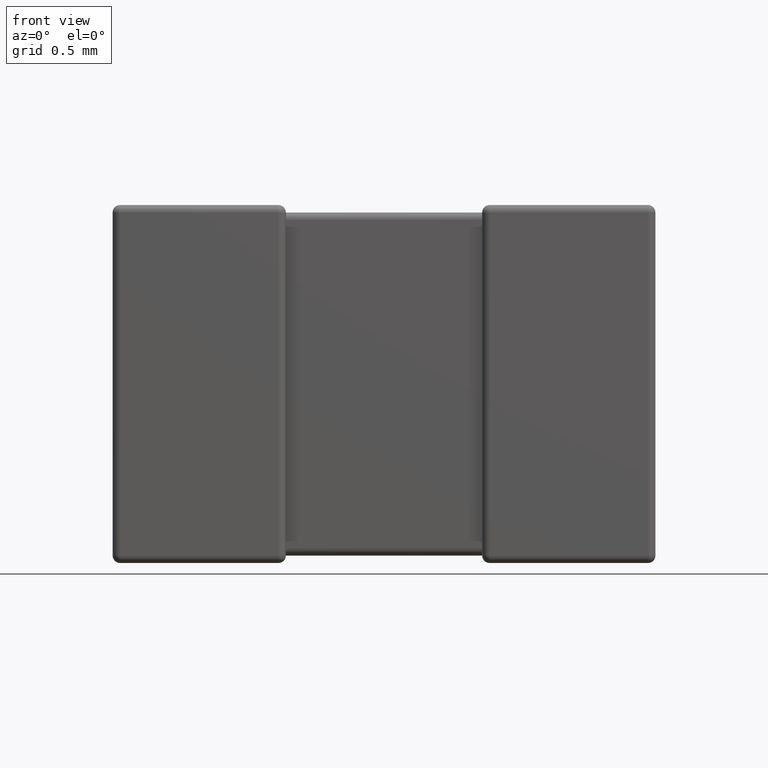
[diagram: clean part render]
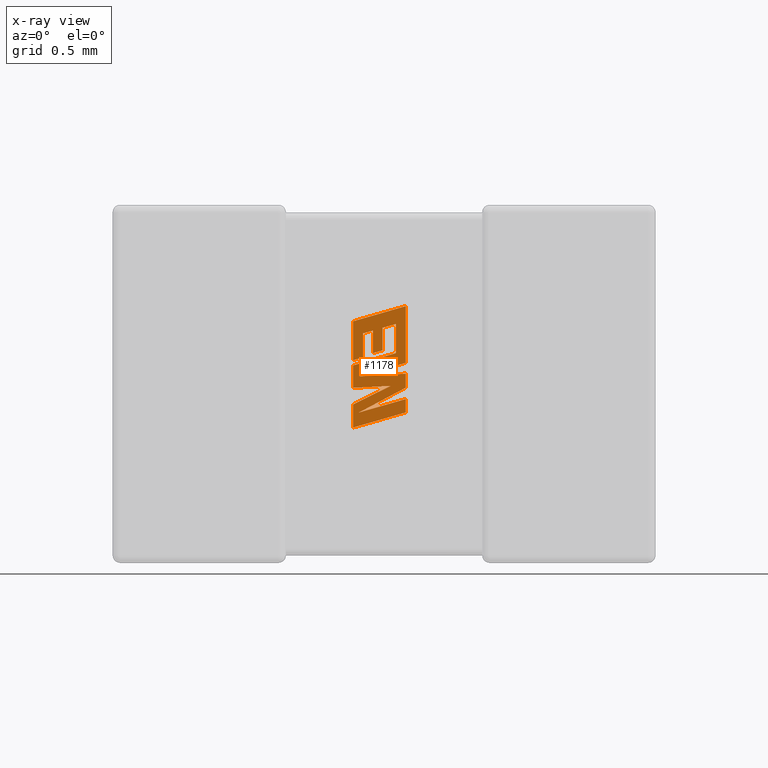
[diagram: x-ray — body ghosted, one internal face saturated and labeled with its STEP entity id]
A machine part, front view, then the same camera in x-ray: the body is ghosted and one INTERNAL B-rep face — a face not visible from any outside direction — is saturated and labeled: STEP entity #1178.
In plain terms, the highlighted planar face has unit normal (0, -1, 0).
Its self-contained STEP definition (entity closure, byte-faithful):
#70 = CARTESIAN_POINT ( 'NONE',  ( 1.066135960447848641, 1.417759999999999909, -0.7421563696426072276 ) ) ;
#73 = DIRECTION ( 'NONE',  ( 0.000000000000000000, 0.000000000000000000, -1.000000000000000000 ) ) ;
#80 = CARTESIAN_POINT ( 'NONE',  ( 1.066135960447848641, 1.417759999999999909, -0.7421563696426072276 ) ) ;
#81 = CARTESIAN_POINT ( 'NONE',  ( 1.169014311898064706, 1.417759999999999909, -0.5318483123047624828 ) ) ;
#102 = CARTESIAN_POINT ( 'NONE',  ( 1.126889512155282880, 1.417759999999999909, -0.6416697486451697907 ) ) ;
#158 = EDGE_CURVE ( 'NONE', #3493, #799, #3998, .T. ) ;
#179 = CARTESIAN_POINT ( 'NONE',  ( 1.269000000000003681, 1.417759999999999909, -0.7915325740813675681 ) ) ;
#197 = ORIENTED_EDGE ( 'NONE', *, *, #4203, .F. ) ;
#214 = VECTOR ( 'NONE', #3396, 1000.000000000000114 ) ;
#216 = ORIENTED_EDGE ( 'NONE', *, *, #584, .F. ) ;
#217 = VERTEX_POINT ( 'NONE', #1739 ) ;
#227 = CARTESIAN_POINT ( 'NONE',  ( 1.041132956314514857, 1.417759999999999909, -0.8640816736198583259 ) ) ;
#282 = LINE ( 'NONE', #327, #4197 ) ;
#299 = CARTESIAN_POINT ( 'NONE',  ( 1.126889512155282880, 1.417759999999999909, -0.6416697486451697907 ) ) ;
#305 = ORIENTED_EDGE ( 'NONE', *, *, #1965, .F. ) ;
#327 = CARTESIAN_POINT ( 'NONE',  ( 1.269000000000003681, 1.417759999999999909, -0.6839081761791220293 ) ) ;
#333 = LINE ( 'NONE', #3987, #1693 ) ;
#379 = ORIENTED_EDGE ( 'NONE', *, *, #765, .F. ) ;
#396 = EDGE_CURVE ( 'NONE', #2285, #4558, #4641, .T. ) ;
#411 = ORIENTED_EDGE ( 'NONE', *, *, #434, .F. ) ;
#420 = VERTEX_POINT ( 'NONE', #227 ) ;
#433 = CARTESIAN_POINT ( 'NONE',  ( 1.041132956314514857, 1.417759999999999909, -0.9640226091935145680 ) ) ;
#434 = EDGE_CURVE ( 'NONE', #2958, #3549, #3775, .T. ) ;
#450 = CARTESIAN_POINT ( 'NONE',  ( 1.269000000000003681, 1.417759999999999909, -0.6433485324851828668 ) ) ;
#479 = VERTEX_POINT ( 'NONE', #4665 ) ;
#480 = VECTOR ( 'NONE', #1708, 1000.000000000000114 ) ;
#495 = LINE ( 'NONE', #585, #2549 ) ;
#502 = DIRECTION ( 'NONE',  ( 0.9611542233438712390, 0.000000000000000000, 0.2760118818968482213 ) ) ;
#523 = EDGE_CURVE ( 'NONE', #217, #3397, #333, .T. ) ;
#538 = LINE ( 'NONE', #1970, #1705 ) ;
#545 = ORIENTED_EDGE ( 'NONE', *, *, #396, .F. ) ;
#584 = EDGE_CURVE ( 'NONE', #2436, #3440, #3622, .T. ) ;
#585 = CARTESIAN_POINT ( 'NONE',  ( 1.041132956314514857, 1.417759999999999909, -0.7921057084777192170 ) ) ;
#611 = DIRECTION ( 'NONE',  ( 0.000000000000000000, 0.000000000000000000, 1.000000000000000000 ) ) ;
#755 = PLANE ( 'NONE',  #1980 ) ;
#765 = EDGE_CURVE ( 'NONE', #1335, #3493, #2112, .T. ) ;
#781 = VERTEX_POINT ( 'NONE', #2162 ) ;
#799 = VERTEX_POINT ( 'NONE', #1111 ) ;
#840 = EDGE_CURVE ( 'NONE', #2706, #4400, #1854, .T. ) ;
#848 = DIRECTION ( 'NONE',  ( 0.000000000000000000, 0.000000000000000000, -1.000000000000000000 ) ) ;
#896 = DIRECTION ( 'NONE',  ( 0.000000000000000000, 0.000000000000000000, -1.000000000000000000 ) ) ;
#909 = ORIENTED_EDGE ( 'NONE', *, *, #523, .F. ) ;
#915 = CARTESIAN_POINT ( 'NONE',  ( 1.084506278058296802, 1.417759999999999909, -0.5561993412986168117 ) ) ;
#921 = ORIENTED_EDGE ( 'NONE', *, *, #2965, .F. ) ;
#923 = LINE ( 'NONE', #3839, #480 ) ;
#942 = CARTESIAN_POINT ( 'NONE',  ( 1.269000000000003681, 1.417759999999999909, -0.7915325740813675681 ) ) ;
#963 = EDGE_CURVE ( 'NONE', #3397, #1335, #1721, .T. ) ;
#987 = CARTESIAN_POINT ( 'NONE',  ( 1.041132956314514857, 1.417759999999999909, -0.9640226091935145680 ) ) ;
#993 = EDGE_CURVE ( 'NONE', #1395, #420, #1293, .T. ) ;
#1085 = VECTOR ( 'NONE', #1794, 1000.000000000000114 ) ;
#1111 = CARTESIAN_POINT ( 'NONE',  ( 1.126889512155282880, 1.417759999999999909, -0.5438665490579562833 ) ) ;
#1112 = DIRECTION ( 'NONE',  ( 0.000000000000000000, 0.000000000000000000, -1.000000000000000000 ) ) ;
#1128 = CARTESIAN_POINT ( 'NONE',  ( 1.203924100055729252, 1.417759999999999909, -0.7833425935635931481 ) ) ;
#1157 = VECTOR ( 'NONE', #4256, 1000.000000000000000 ) ;
#1169 = VECTOR ( 'NONE', #2097, 1000.000000000000227 ) ;
#1178 = ADVANCED_FACE ( 'NONE', ( #4346 ), #755, .T. ) ;
#1199 = CARTESIAN_POINT ( 'NONE',  ( 1.269000000000003681, 1.417759999999999909, -0.8985091539642460212 ) ) ;
#1213 = ORIENTED_EDGE ( 'NONE', *, *, #993, .F. ) ;
#1219 = LINE ( 'NONE', #3035, #2717 ) ;
#1253 = VERTEX_POINT ( 'NONE', #2304 ) ;
#1261 = LINE ( 'NONE', #1610, #214 ) ;
#1293 = LINE ( 'NONE', #987, #1157 ) ;
#1335 = VERTEX_POINT ( 'NONE', #4043 ) ;
#1395 = VERTEX_POINT ( 'NONE', #433 ) ;
#1410 = CARTESIAN_POINT ( 'NONE',  ( 1.169014311898064706, 1.417759999999999909, -0.6296376548220525837 ) ) ;
#1416 = CARTESIAN_POINT ( 'NONE',  ( 1.269000000000003681, 1.417759999999999909, -0.7307852580555117550 ) ) ;
#1451 = ORIENTED_EDGE ( 'NONE', *, *, #963, .F. ) ;
#1486 = ORIENTED_EDGE ( 'NONE', *, *, #3501, .F. ) ;
#1551 = ORIENTED_EDGE ( 'NONE', *, *, #158, .F. ) ;
#1565 = DIRECTION ( 'NONE',  ( -0.9619530280415479195, 0.000000000000000000, -0.2732148821746301914 ) ) ;
#1610 = CARTESIAN_POINT ( 'NONE',  ( 1.126889512155282880, 1.417759999999999909, -0.5438665490579562833 ) ) ;
#1690 = VECTOR ( 'NONE', #3631, 1000.000000000000000 ) ;
#1693 = VECTOR ( 'NONE', #2583, 1000.000000000000114 ) ;
#1705 = VECTOR ( 'NONE', #3735, 1000.000000000000114 ) ;
#1708 = DIRECTION ( 'NONE',  ( -0.9610674221107078363, 0.000000000000000000, -0.2763139702539095244 ) ) ;
#1721 = LINE ( 'NONE', #2061, #2897 ) ;
#1735 = ORIENTED_EDGE ( 'NONE', *, *, #2041, .F. ) ;
#1739 = CARTESIAN_POINT ( 'NONE',  ( 1.225648156714193471, 1.417759999999999909, -0.5157117543673824800 ) ) ;
#1790 = CARTESIAN_POINT ( 'NONE',  ( 1.269000000000003681, 1.417759999999999909, -0.7307852580555117550 ) ) ;
#1794 = DIRECTION ( 'NONE',  ( -0.9985542843760948362, 0.000000000000000000, -0.05375259206908061110 ) ) ;
#1854 = LINE ( 'NONE', #70, #2053 ) ;
#1907 = CARTESIAN_POINT ( 'NONE',  ( 1.065159037018030608, 1.417759999999999909, -0.8991410363531673333 ) ) ;
#1926 = DIRECTION ( 'NONE',  ( 0.000000000000000000, 0.000000000000000000, 1.000000000000000000 ) ) ;
#1965 = EDGE_CURVE ( 'NONE', #3549, #2436, #3743, .T. ) ;
#1970 = CARTESIAN_POINT ( 'NONE',  ( 1.041132956314514857, 1.417759999999999909, -0.5039962945937563887 ) ) ;
#1980 = AXIS2_PLACEMENT_3D ( 'NONE', #2179, #3560, #2879 ) ;
#1991 = LINE ( 'NONE', #915, #4666 ) ;
#2015 = CARTESIAN_POINT ( 'NONE',  ( 1.041132956314514857, 1.417759999999999909, -0.6950651962186354949 ) ) ;
#2031 = CARTESIAN_POINT ( 'NONE',  ( 1.269000000000003681, 1.417759999999999909, -0.6839081761791220293 ) ) ;
#2035 = CARTESIAN_POINT ( 'NONE',  ( 1.084506278058296802, 1.417759999999999909, -0.5561993412986168117 ) ) ;
#2041 = EDGE_CURVE ( 'NONE', #3545, #2706, #282, .T. ) ;
#2053 = VECTOR ( 'NONE', #3219, 1000.000000000000227 ) ;
#2061 = CARTESIAN_POINT ( 'NONE',  ( 1.169014311898064706, 1.417759999999999909, -0.5318483123047624828 ) ) ;
#2063 = CARTESIAN_POINT ( 'NONE',  ( 1.041132956314514857, 1.417759999999999909, -0.6723368301145032921 ) ) ;
#2087 = VECTOR ( 'NONE', #73, 1000.000000000000000 ) ;
#2097 = DIRECTION ( 'NONE',  ( -0.8843386665637651411, 0.000000000000000000, -0.4668459304955136502 ) ) ;
#2102 = EDGE_CURVE ( 'NONE', #4400, #2958, #4353, .T. ) ;
#2112 = LINE ( 'NONE', #1410, #2973 ) ;
#2162 = CARTESIAN_POINT ( 'NONE',  ( 1.084506278058296802, 1.417759999999999909, -0.6600178949437544018 ) ) ;
#2179 = CARTESIAN_POINT ( 'NONE',  ( -0.2601923135456278291, 1.417759999999999909, 0.003507179810070972133 ) ) ;
#2195 = EDGE_CURVE ( 'NONE', #3160, #479, #538, .T. ) ;
#2279 = ORIENTED_EDGE ( 'NONE', *, *, #840, .F. ) ;
#2285 = VERTEX_POINT ( 'NONE', #4047 ) ;
#2299 = VECTOR ( 'NONE', #502, 1000.000000000000114 ) ;
#2304 = CARTESIAN_POINT ( 'NONE',  ( 1.041132956314514857, 1.417759999999999909, -0.6723368301145032921 ) ) ;
#2436 = VERTEX_POINT ( 'NONE', #4487 ) ;
#2484 = ORIENTED_EDGE ( 'NONE', *, *, #4012, .F. ) ;
#2490 = CARTESIAN_POINT ( 'NONE',  ( 1.203924100055729252, 1.417759999999999909, -0.7833425935635931481 ) ) ;
#2507 = LINE ( 'NONE', #2490, #1085 ) ;
#2549 = VECTOR ( 'NONE', #1926, 1000.000000000000000 ) ;
#2583 = DIRECTION ( 'NONE',  ( -0.9617234872620624708, 0.000000000000000000, -0.2740217765953968376 ) ) ;
#2689 = ORIENTED_EDGE ( 'NONE', *, *, #2195, .F. ) ;
#2706 = VERTEX_POINT ( 'NONE', #80 ) ;
#2709 = EDGE_CURVE ( 'NONE', #781, #1253, #3704, .T. ) ;
#2717 = VECTOR ( 'NONE', #3066, 1000.000000000000000 ) ;
#2869 = DIRECTION ( 'NONE',  ( -0.9611638845408968512, 0.000000000000000000, -0.2759782365590690012 ) ) ;
#2879 = DIRECTION ( 'NONE',  ( 0.000000000000000000, 0.000000000000000000, -1.000000000000000000 ) ) ;
#2897 = VECTOR ( 'NONE', #4518, 1000.000000000000000 ) ;
#2958 = VERTEX_POINT ( 'NONE', #942 ) ;
#2964 = VERTEX_POINT ( 'NONE', #4651 ) ;
#2965 = EDGE_CURVE ( 'NONE', #420, #4313, #3542, .T. ) ;
#2973 = VECTOR ( 'NONE', #4352, 1000.000000000000114 ) ;
#2999 = EDGE_CURVE ( 'NONE', #1253, #3160, #4612, .T. ) ;
#3000 = ORIENTED_EDGE ( 'NONE', *, *, #3827, .F. ) ;
#3008 = CARTESIAN_POINT ( 'NONE',  ( 1.269000000000003681, 1.417759999999999909, -0.8406046158351553332 ) ) ;
#3035 = CARTESIAN_POINT ( 'NONE',  ( 1.225648156714193471, 1.417759999999999909, -0.6420286467557699828 ) ) ;
#3066 = DIRECTION ( 'NONE',  ( 0.000000000000000000, 0.000000000000000000, 1.000000000000000000 ) ) ;
#3144 = EDGE_CURVE ( 'NONE', #4259, #781, #1991, .T. ) ;
#3160 = VERTEX_POINT ( 'NONE', #3402 ) ;
#3206 = VECTOR ( 'NONE', #3466, 1000.000000000000000 ) ;
#3219 = DIRECTION ( 'NONE',  ( 0.9984327301130250243, 0.000000000000000000, 0.05596501978067341954 ) ) ;
#3240 = EDGE_LOOP ( 'NONE', ( #1213, #3000, #216, #305, #411, #4332, #2279, #1735, #3977, #2689, #3782, #3321, #4359, #4497, #1551, #379, #1451, #909, #1486, #545, #197, #2484, #921 ) ) ;
#3321 = ORIENTED_EDGE ( 'NONE', *, *, #2709, .F. ) ;
#3396 = DIRECTION ( 'NONE',  ( -0.9601763114327565019, 0.000000000000000000, -0.2793947940878393488 ) ) ;
#3397 = VERTEX_POINT ( 'NONE', #81 ) ;
#3402 = CARTESIAN_POINT ( 'NONE',  ( 1.041132956314514857, 1.417759999999999909, -0.5039962945937563887 ) ) ;
#3440 = VERTEX_POINT ( 'NONE', #1199 ) ;
#3466 = DIRECTION ( 'NONE',  ( 0.9610853065513847993, 0.000000000000000000, 0.2762517575166369976 ) ) ;
#3476 = EDGE_CURVE ( 'NONE', #799, #4259, #1261, .T. ) ;
#3493 = VERTEX_POINT ( 'NONE', #102 ) ;
#3501 = EDGE_CURVE ( 'NONE', #4558, #217, #1219, .T. ) ;
#3542 = LINE ( 'NONE', #4566, #4067 ) ;
#3545 = VERTEX_POINT ( 'NONE', #2031 ) ;
#3549 = VERTEX_POINT ( 'NONE', #4174 ) ;
#3560 = DIRECTION ( 'NONE',  ( 0.000000000000000000, -1.000000000000000000, 0.000000000000000000 ) ) ;
#3622 = LINE ( 'NONE', #3008, #4484 ) ;
#3631 = DIRECTION ( 'NONE',  ( 0.000000000000000000, 0.000000000000000000, 1.000000000000000000 ) ) ;
#3664 = VECTOR ( 'NONE', #1112, 1000.000000000000000 ) ;
#3704 = LINE ( 'NONE', #4133, #4356 ) ;
#3735 = DIRECTION ( 'NONE',  ( 0.9610029908221285888, 0.000000000000000000, 0.2765379750249931101 ) ) ;
#3743 = LINE ( 'NONE', #1907, #2299 ) ;
#3756 = VECTOR ( 'NONE', #611, 1000.000000000000000 ) ;
#3775 = LINE ( 'NONE', #179, #1169 ) ;
#3782 = ORIENTED_EDGE ( 'NONE', *, *, #2999, .F. ) ;
#3827 = EDGE_CURVE ( 'NONE', #3440, #1395, #923, .T. ) ;
#3839 = CARTESIAN_POINT ( 'NONE',  ( 1.269000000000003681, 1.417759999999999909, -0.8985091539642460212 ) ) ;
#3977 = ORIENTED_EDGE ( 'NONE', *, *, #4517, .F. ) ;
#3987 = CARTESIAN_POINT ( 'NONE',  ( 1.225648156714193471, 1.417759999999999909, -0.5157117543673824800 ) ) ;
#3998 = LINE ( 'NONE', #299, #1690 ) ;
#4012 = EDGE_CURVE ( 'NONE', #4313, #2964, #2507, .T. ) ;
#4043 = CARTESIAN_POINT ( 'NONE',  ( 1.169014311898064706, 1.417759999999999909, -0.6296376548220525837 ) ) ;
#4047 = CARTESIAN_POINT ( 'NONE',  ( 1.041132956314514857, 1.417759999999999909, -0.6950651962186354949 ) ) ;
#4067 = VECTOR ( 'NONE', #4213, 1000.000000000000114 ) ;
#4133 = CARTESIAN_POINT ( 'NONE',  ( 1.084506278058296802, 1.417759999999999909, -0.6600178949437544018 ) ) ;
#4174 = CARTESIAN_POINT ( 'NONE',  ( 1.065159037018030608, 1.417759999999999909, -0.8991410363531673333 ) ) ;
#4197 = VECTOR ( 'NONE', #2869, 1000.000000000000114 ) ;
#4203 = EDGE_CURVE ( 'NONE', #2964, #2285, #495, .T. ) ;
#4213 = DIRECTION ( 'NONE',  ( 0.8958676361826827250, 0.000000000000000000, 0.4443210308329466618 ) ) ;
#4256 = DIRECTION ( 'NONE',  ( 0.000000000000000000, 0.000000000000000000, 1.000000000000000000 ) ) ;
#4259 = VERTEX_POINT ( 'NONE', #2035 ) ;
#4313 = VERTEX_POINT ( 'NONE', #1128 ) ;
#4332 = ORIENTED_EDGE ( 'NONE', *, *, #2102, .F. ) ;
#4346 = FACE_OUTER_BOUND ( 'NONE', #3240, .T. ) ;
#4352 = DIRECTION ( 'NONE',  ( -0.9615454294334447871, 0.000000000000000000, -0.2746459304917006072 ) ) ;
#4353 = LINE ( 'NONE', #1790, #3664 ) ;
#4356 = VECTOR ( 'NONE', #1565, 1000.000000000000000 ) ;
#4358 = LINE ( 'NONE', #450, #2087 ) ;
#4359 = ORIENTED_EDGE ( 'NONE', *, *, #3144, .F. ) ;
#4400 = VERTEX_POINT ( 'NONE', #1416 ) ;
#4456 = CARTESIAN_POINT ( 'NONE',  ( 1.225648156714193471, 1.417759999999999909, -0.6420286467557699828 ) ) ;
#4484 = VECTOR ( 'NONE', #848, 1000.000000000000000 ) ;
#4487 = CARTESIAN_POINT ( 'NONE',  ( 1.269000000000003681, 1.417759999999999909, -0.8406046158351553332 ) ) ;
#4497 = ORIENTED_EDGE ( 'NONE', *, *, #3476, .F. ) ;
#4517 = EDGE_CURVE ( 'NONE', #479, #3545, #4358, .T. ) ;
#4518 = DIRECTION ( 'NONE',  ( 0.000000000000000000, 0.000000000000000000, -1.000000000000000000 ) ) ;
#4558 = VERTEX_POINT ( 'NONE', #4456 ) ;
#4566 = CARTESIAN_POINT ( 'NONE',  ( 1.041132956314514857, 1.417759999999999909, -0.8640816736198583259 ) ) ;
#4612 = LINE ( 'NONE', #2063, #3756 ) ;
#4641 = LINE ( 'NONE', #2015, #3206 ) ;
#4651 = CARTESIAN_POINT ( 'NONE',  ( 1.041132956314514857, 1.417759999999999909, -0.7921057084777192170 ) ) ;
#4665 = CARTESIAN_POINT ( 'NONE',  ( 1.269000000000003681, 1.417759999999999909, -0.4384253323412780623 ) ) ;
#4666 = VECTOR ( 'NONE', #896, 1000.000000000000000 ) ;